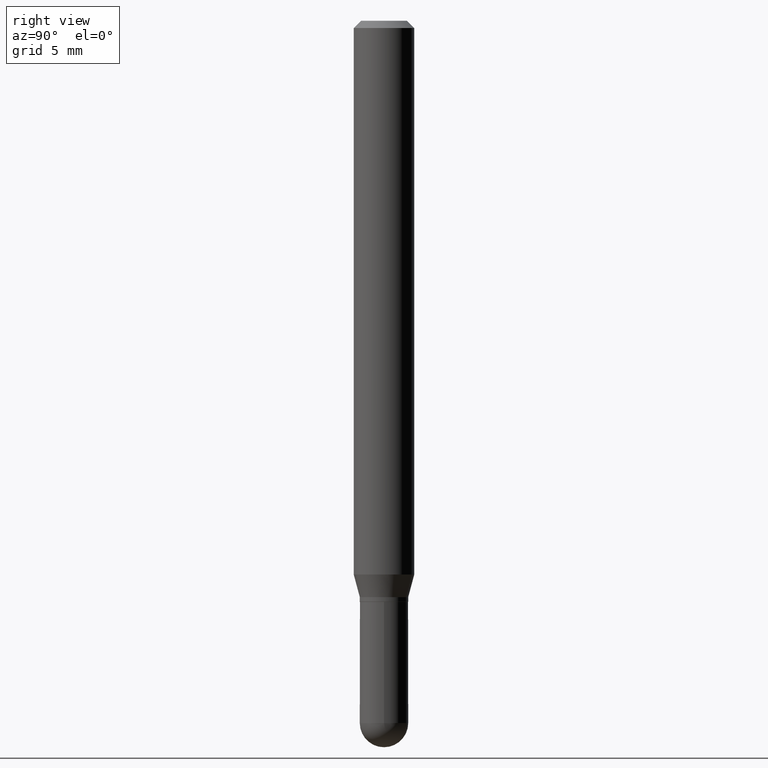
[diagram: clean part render]
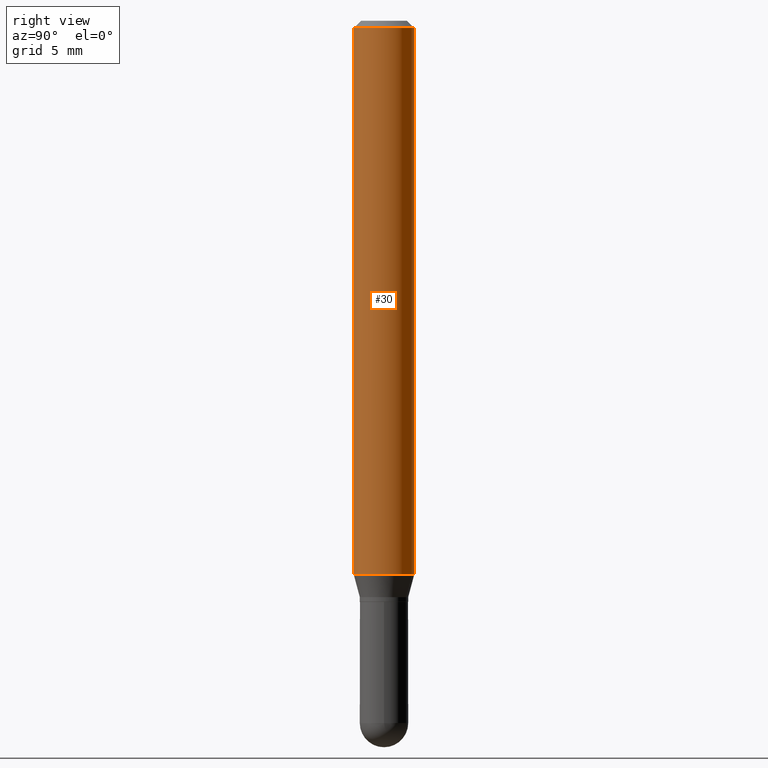
[diagram: same view with one face highlighted and labeled with its STEP entity id]
A machine part, right view. The second image highlights one B-rep face of the part: STEP entity #30.
In plain terms, the highlighted cylindrical surface (edge-blend (fillet) strip) has radius 1.5875 mm, axis along (-0, 0, 1).
Its self-contained STEP definition (entity closure, byte-faithful):
#30 = ADVANCED_FACE ( 'NONE', ( #161 ), #122, .T. ) ;
#43 = CARTESIAN_POINT ( 'NONE',  ( 4.440892098500904235E-16, 0.06249999999999599626, -1.143349364905390075 ) ) ;
#51 = AXIS2_PLACEMENT_3D ( 'NONE', #313, #116, #448 ) ;
#57 = EDGE_LOOP ( 'NONE', ( #432, #245, #465, #293 ) ) ;
#73 = CIRCLE ( 'NONE', #251, 0.06250000000000000000 ) ;
#85 = DIRECTION ( 'NONE',  ( -2.445464009706415919E-29, 3.491488207673672253E-15, 1.000000000000000000 ) ) ;
#116 = DIRECTION ( 'NONE',  ( -2.445464009706415919E-29, 3.491488207673672253E-15, 1.000000000000000000 ) ) ;
#117 = VECTOR ( 'NONE', #214, 39.37007874015748143 ) ;
#118 = CARTESIAN_POINT ( 'NONE',  ( 2.796019722396818456E-29, -3.991990824818351621E-15, -1.143349364905389853 ) ) ;
#120 = LINE ( 'NONE', #237, #435 ) ;
#122 = CYLINDRICAL_SURFACE ( 'NONE', #51, 0.06250000000000000000 ) ;
#125 = EDGE_CURVE ( 'NONE', #429, #260, #120, .T. ) ;
#147 = LINE ( 'NONE', #418, #117 ) ;
#161 = FACE_OUTER_BOUND ( 'NONE', #57, .T. ) ;
#165 = CIRCLE ( 'NONE', #233, 0.06250000000000000000 ) ;
#212 = CARTESIAN_POINT ( 'NONE',  ( 3.668196014559625946E-31, -5.237232311510511609E-17, -0.01500000000000000812 ) ) ;
#214 = DIRECTION ( 'NONE',  ( -2.445464009706415919E-29, 3.491488207673672253E-15, 1.000000000000000000 ) ) ;
#218 = DIRECTION ( 'NONE',  ( -2.445464009706415919E-29, 3.491488207673672253E-15, 1.000000000000000000 ) ) ;
#221 = EDGE_CURVE ( 'NONE', #429, #460, #165, .T. ) ;
#232 = CARTESIAN_POINT ( 'NONE',  ( -4.364351673553637142E-16, -0.06250000000000399680, -1.143349364905389409 ) ) ;
#233 = AXIS2_PLACEMENT_3D ( 'NONE', #118, #281, #438 ) ;
#237 = CARTESIAN_POINT ( 'NONE',  ( -4.364351673553916201E-16, -0.06250000000000000000, 2.182180129796045158E-16 ) ) ;
#245 = ORIENTED_EDGE ( 'NONE', *, *, #354, .T. ) ;
#251 = AXIS2_PLACEMENT_3D ( 'NONE', #212, #218, #500 ) ;
#260 = VERTEX_POINT ( 'NONE', #475 ) ;
#281 = DIRECTION ( 'NONE',  ( -2.445464009706415919E-29, 3.491488207673672253E-15, 1.000000000000000000 ) ) ;
#293 = ORIENTED_EDGE ( 'NONE', *, *, #125, .F. ) ;
#313 = CARTESIAN_POINT ( 'NONE',  ( 0.000000000000000000, 0.000000000000000000, 0.000000000000000000 ) ) ;
#331 = CARTESIAN_POINT ( 'NONE',  ( 4.440892098500907193E-16, 0.06249999999999995143, -0.01500000000000022669 ) ) ;
#354 = EDGE_CURVE ( 'NONE', #460, #507, #147, .T. ) ;
#418 = CARTESIAN_POINT ( 'NONE',  ( 4.440892098500625669E-16, 0.06250000000000000000, -2.182180129796045158E-16 ) ) ;
#429 = VERTEX_POINT ( 'NONE', #232 ) ;
#432 = ORIENTED_EDGE ( 'NONE', *, *, #221, .T. ) ;
#435 = VECTOR ( 'NONE', #85, 39.37007874015748143 ) ;
#438 = DIRECTION ( 'NONE',  ( -6.982962677686265922E-15, -1.000000000000000000, 4.370956789862821150E-15 ) ) ;
#448 = DIRECTION ( 'NONE',  ( -6.982962677686265922E-15, -1.000000000000000000, 3.491488207673672253E-15 ) ) ;
#460 = VERTEX_POINT ( 'NONE', #43 ) ;
#465 = ORIENTED_EDGE ( 'NONE', *, *, #493, .F. ) ;
#475 = CARTESIAN_POINT ( 'NONE',  ( -4.364351673553912750E-16, -0.06250000000000005551, -0.01499999999999979128 ) ) ;
#493 = EDGE_CURVE ( 'NONE', #260, #507, #73, .T. ) ;
#500 = DIRECTION ( 'NONE',  ( -6.982962677686265922E-15, -1.000000000000000000, 3.483106191921935554E-15 ) ) ;
#507 = VERTEX_POINT ( 'NONE', #331 ) ;